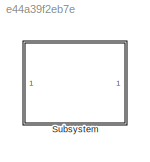
MODEL slx_e44a39f2eb7e
KIND library
CONFIG AbsTol = auto
CONFIG EnableMultiTasking = off
CONFIG FixedStep = auto
CONFIG MaxStep = auto
CONFIG MinStep = auto
CONFIG RelTol = 1e-3
CONFIG SampleTimeConstraint = Unconstrained
CONFIG Solver = VariableStepAuto
CONFIG SolverName = VariableStepAuto
CONFIG StartTime = 0.0
CONFIG StopTime = 10.0
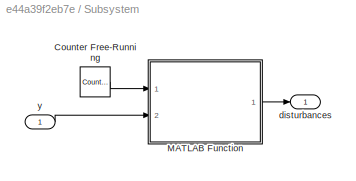
BLOCK [SubSystem] Subsystem
  Ports = [1, 1]
  RequestExecContextInheritance = off
BLOCK [Reference] Subsystem/Counter Free-Running  REF=simulink/Sources/Counter
Free-Running
  Ports = [0, 1]
  SourceBlock = simulink/Sources/Counter\nFree-Running
  SourceProductBaseCode = SL
  SourceProductName = Simulink
  SourceType = Counter Free-Running
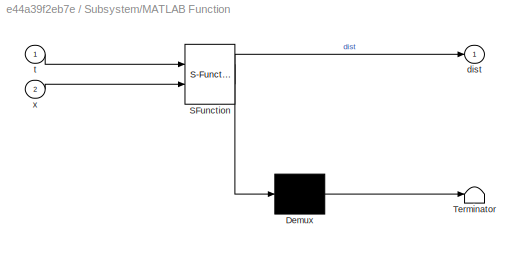
BLOCK [SubSystem] Subsystem/MATLAB Function
  ErrorFcn = Stateflow.Translate.translate
  PermitHierarchicalResolution = ExplicitOnly
  Ports = [2, 1]
  RequestExecContextInheritance = off
  SFBlockType = MATLAB Function
  TreatAsAtomicUnit = on
BLOCK [Demux] Subsystem/MATLAB Function/ Demux 
  Outputs = 1
  Ports = [1, 1]
BLOCK [S-Function] Subsystem/MATLAB Function/ SFunction 
  EnableBusSupport = on
  FunctionName = sf_sfun
  Parameters = disturbances
  PortCounts = [2 2]
  Ports = [2, 2]
  SFcnIsStateOwnerBlock = off
  SFunctionDeploymentMode = off
  Tag = Stateflow S-Function disturbance_lib 2
BLOCK [Terminator] Subsystem/MATLAB Function/ Terminator 
BLOCK [Outport] Subsystem/MATLAB Function/dist
  IconDisplay = Port number
BLOCK [Inport] Subsystem/MATLAB Function/t
  IconDisplay = Port number
BLOCK [Inport] Subsystem/MATLAB Function/x
  IconDisplay = Port number
  Port = 2
BLOCK [Outport] Subsystem/disturbances
  IconDisplay = Port number
BLOCK [Inport] Subsystem/y
  IconDisplay = Port number
LINE Subsystem/Counter Free-Running:1 -> Subsystem/MATLAB Function:1
LINE Subsystem/MATLAB Function:1 -> Subsystem/disturbances:1
LINE Subsystem/y:1 -> Subsystem/MATLAB Function:2
CHART Subsystem/MATLAB Function states=1 transitions=1
  STATE_LABEL 'eML_blk_kernel()'
  STATE_LABEL 'SCRIPT:\nfunction dist = calc_disturbances(t, x, disturbances)\n% Disturbances is 4-C-X matrix of C points in X steps\n% First dimension is position x, y, z and magnitude M\n% Output dist is 4-C-N matrix of [x;y;z;dist] for C disturbances on N drones\ni = t+1; % Current time index\n[~, C, ~] = size(disturbances);\n[~, N] = size(x);\nif i > numel(disturbances(1,1,:))\n    i = uint32(1);\nend\ndist = zeros(4, ...<+214ch>'
